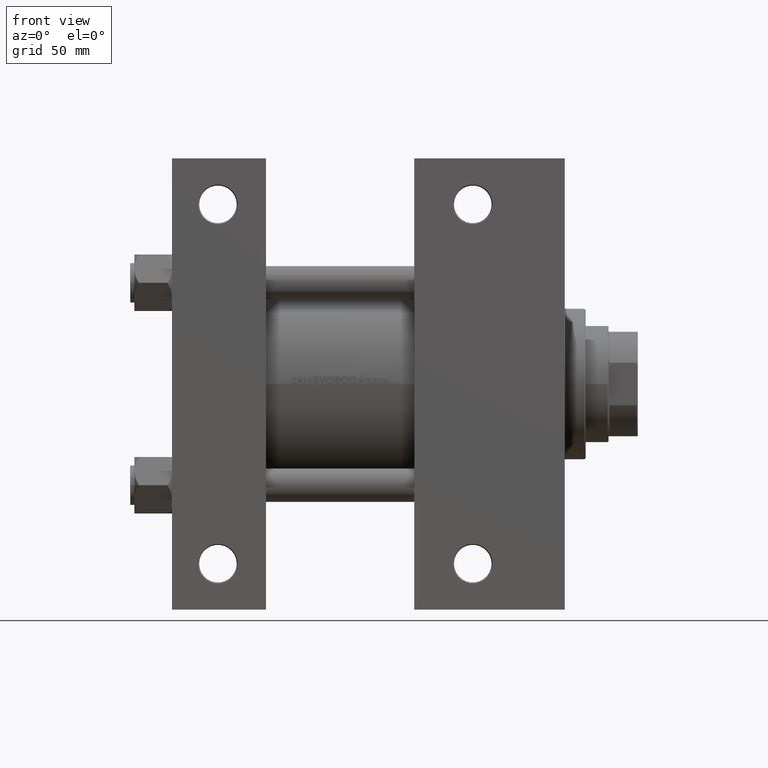
[diagram: clean part render]
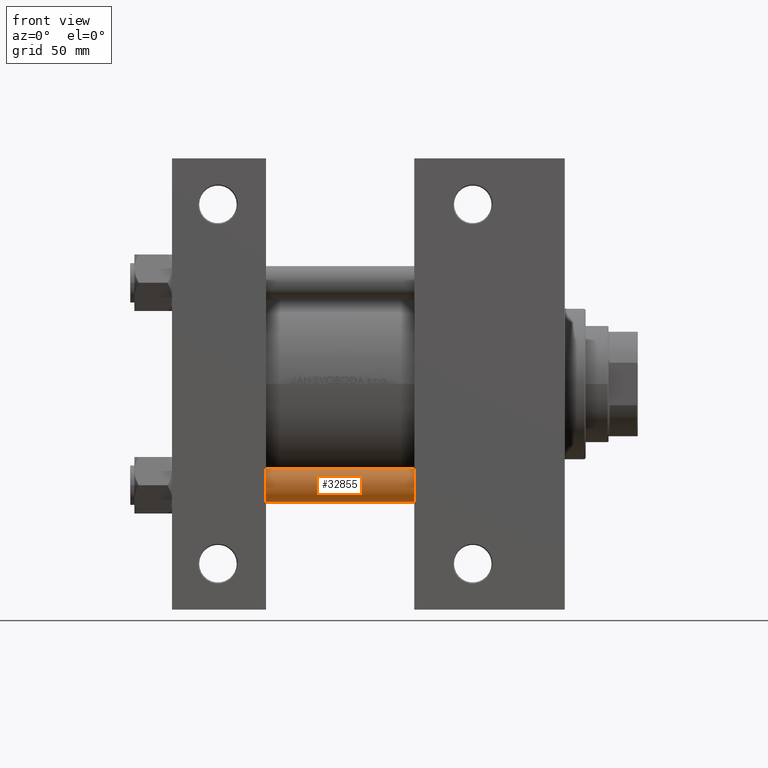
[diagram: same view with one face highlighted and labeled with its STEP entity id]
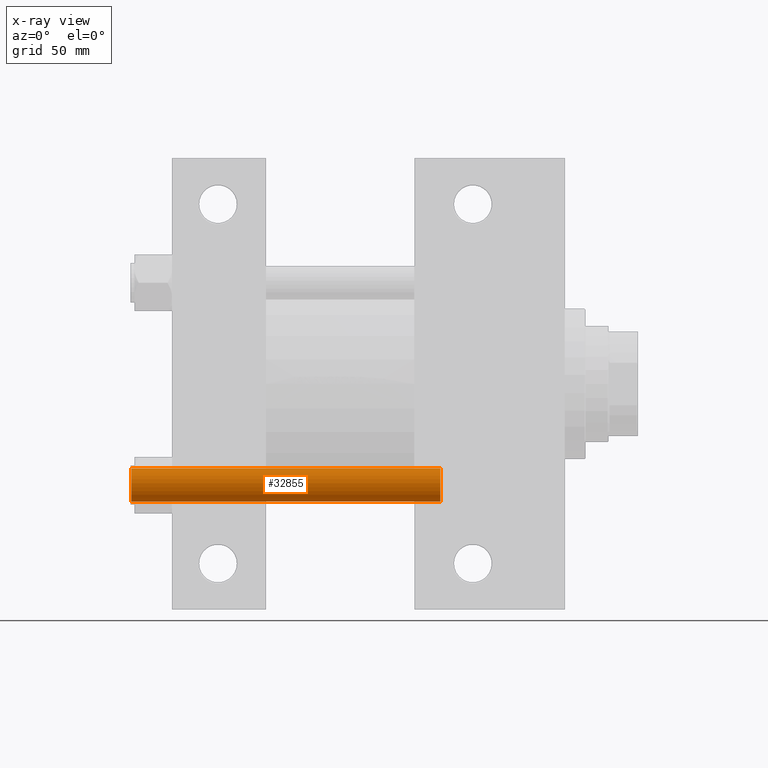
[diagram: x-ray of the same camera — body ghosted, the highlighted face saturated]
A machine part, front view. The second image highlights one B-rep face of the part: STEP entity #32855.
The next image is the same camera in x-ray: the body ghosted, the highlighted face saturated — about 0% of this face is hidden behind the body in this view.
In plain terms, the highlighted cylindrical surface (edge-blend (fillet) strip) has radius 8 mm, axis along (-1, 0, 0).
Its self-contained STEP definition (entity closure, byte-faithful):
#181 = LINE ( 'NONE', #29095, #20371 ) ;
#3237 = ORIENTED_EDGE ( 'NONE', *, *, #28519, .F. ) ;
#3923 = DIRECTION ( 'NONE',  ( -0.000000000000000000, -0.000000000000000000, 1.000000000000000000 ) ) ;
#7716 = CARTESIAN_POINT ( 'NONE',  ( -8.000000000000000000, 0.000000000000000000, 149.0000000000000000 ) ) ;
#8592 = VERTEX_POINT ( 'NONE', #15590 ) ;
#9621 = DIRECTION ( 'NONE',  ( -1.000000000000000000, 0.000000000000000000, 0.000000000000000000 ) ) ;
#11079 = CIRCLE ( 'NONE', #19621, 8.000000000000000000 ) ;
#11351 = DIRECTION ( 'NONE',  ( -0.000000000000000000, -0.000000000000000000, -1.000000000000000000 ) ) ;
#11764 = VERTEX_POINT ( 'NONE', #30500 ) ;
#13413 = EDGE_CURVE ( 'NONE', #11764, #8592, #181, .T. ) ;
#15303 = ORIENTED_EDGE ( 'NONE', *, *, #13413, .T. ) ;
#15590 = CARTESIAN_POINT ( 'NONE',  ( 8.000000000000000000, 9.797174393178825657E-16, 0.5000000000000281997 ) ) ;
#19621 = AXIS2_PLACEMENT_3D ( 'NONE', #37200, #3923, #21915 ) ;
#20029 = DIRECTION ( 'NONE',  ( 1.000000000000000000, 0.000000000000000000, 0.000000000000000000 ) ) ;
#20371 = VECTOR ( 'NONE', #21580, 1000.000000000000000 ) ;
#20615 = ORIENTED_EDGE ( 'NONE', *, *, #23307, .T. ) ;
#21580 = DIRECTION ( 'NONE',  ( -0.000000000000000000, -0.000000000000000000, -1.000000000000000000 ) ) ;
#21866 = AXIS2_PLACEMENT_3D ( 'NONE', #24159, #39218, #20029 ) ;
#21915 = DIRECTION ( 'NONE',  ( 1.000000000000000000, 0.000000000000000000, 0.000000000000000000 ) ) ;
#22638 = CIRCLE ( 'NONE', #21866, 8.000000000000000000 ) ;
#23008 = VERTEX_POINT ( 'NONE', #23796 ) ;
#23307 = EDGE_CURVE ( 'NONE', #44379, #11764, #22638, .T. ) ;
#23796 = CARTESIAN_POINT ( 'NONE',  ( -8.000000000000000000, 0.000000000000000000, 0.5000000000000281997 ) ) ;
#23892 = ORIENTED_EDGE ( 'NONE', *, *, #30043, .T. ) ;
#24159 = CARTESIAN_POINT ( 'NONE',  ( 0.000000000000000000, 0.000000000000000000, 148.5000000000000000 ) ) ;
#27840 = CYLINDRICAL_SURFACE ( 'NONE', #29008, 8.000000000000000000 ) ;
#28519 = EDGE_CURVE ( 'NONE', #44379, #23008, #41486, .T. ) ;
#29008 = AXIS2_PLACEMENT_3D ( 'NONE', #43143, #42908, #9621 ) ;
#29095 = CARTESIAN_POINT ( 'NONE',  ( 8.000000000000000000, 9.797174393178825657E-16, 149.0000000000000000 ) ) ;
#29489 = CARTESIAN_POINT ( 'NONE',  ( -8.000000000000000000, 0.000000000000000000, 148.5000000000000000 ) ) ;
#29616 = VECTOR ( 'NONE', #11351, 1000.000000000000000 ) ;
#30043 = EDGE_CURVE ( 'NONE', #8592, #23008, #11079, .T. ) ;
#30500 = CARTESIAN_POINT ( 'NONE',  ( 8.000000000000000000, 9.797174393178825657E-16, 148.5000000000000000 ) ) ;
#32311 = EDGE_LOOP ( 'NONE', ( #20615, #15303, #23892, #3237 ) ) ;
#32855 = ADVANCED_FACE ( 'NONE', ( #42431 ), #27840, .T. ) ;
#37200 = CARTESIAN_POINT ( 'NONE',  ( 0.000000000000000000, 0.000000000000000000, 0.5000000000000281997 ) ) ;
#39218 = DIRECTION ( 'NONE',  ( 0.000000000000000000, 0.000000000000000000, -1.000000000000000000 ) ) ;
#41486 = LINE ( 'NONE', #7716, #29616 ) ;
#42431 = FACE_OUTER_BOUND ( 'NONE', #32311, .T. ) ;
#42908 = DIRECTION ( 'NONE',  ( -0.000000000000000000, -0.000000000000000000, -1.000000000000000000 ) ) ;
#43143 = CARTESIAN_POINT ( 'NONE',  ( 0.000000000000000000, 0.000000000000000000, 149.0000000000000000 ) ) ;
#44379 = VERTEX_POINT ( 'NONE', #29489 ) ;